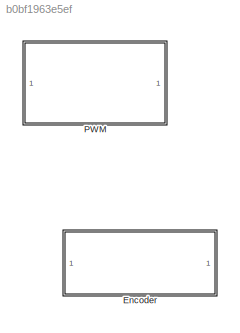
MODEL slx_b0bf1963e5ef
KIND library
CONFIG AbsTol = auto
CONFIG FixedStep = auto
CONFIG MaxStep = auto
CONFIG MinStep = auto
CONFIG RelTol = 1e-3
CONFIG SampleTimeConstraint = Unconstrained
CONFIG Solver = ode45
CONFIG SolverMode = Auto
CONFIG SolverName = ode45
CONFIG StartTime = 0.0
CONFIG StopTime = 10.0
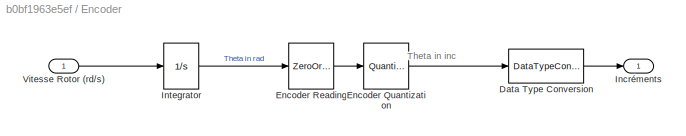
BLOCK [SubSystem] Encoder
  Ports = [1, 1]
  RequestExecContextInheritance = off
BLOCK [DataTypeConversion] Encoder/Data Type Conversion
  RndMeth = Floor
  SaturateOnIntegerOverflow = off
BLOCK [Quantizer] Encoder/Encoder Quantization
  QuantizationInterval = (2*pi)/EncRes
BLOCK [ZeroOrderHold] Encoder/Encoder Reading
  SampleTime = TsEnc
BLOCK [Outport] Encoder/Incréments
  IconDisplay = Port number
BLOCK [Integrator] Encoder/Integrator
  Ports = [1, 1]
BLOCK [Inport] Encoder/Vitesse Rotor (rd//s)
  IconDisplay = Port number
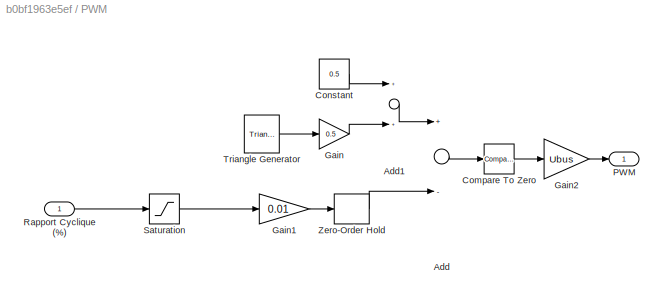
BLOCK [SubSystem] PWM
  Ports = [1, 1]
  RequestExecContextInheritance = off
BLOCK [Sum] PWM/Add
  InputSameDT = off
  Inputs = +-
  OutDataTypeStr = Inherit: Inherit via internal rule
  Ports = [2, 1]
  SaturateOnIntegerOverflow = off
BLOCK [Sum] PWM/Add1
  InputSameDT = off
  OutDataTypeStr = Inherit: Inherit via internal rule
  Ports = [2, 1]
  SaturateOnIntegerOverflow = off
BLOCK [Reference] PWM/Compare To Zero  REF=simulink/Logic and Bit
Operations/Compare
To Zero
  OutDataTypeStr = boolean
  Ports = [1, 1]
  SourceBlock = simulink/Logic and Bit\nOperations/Compare\nTo Zero
  SourceType = Compare To Zero
  ZeroCross = on
  relop = <=
BLOCK [Constant] PWM/Constant
  Value = 0.5
BLOCK [Gain] PWM/Gain
  Gain = 0.5
  OutDataTypeStr = Inherit: Inherit via internal rule
  ParamDataTypeStr = Inherit: Inherit via internal rule
  SaturateOnIntegerOverflow = off
BLOCK [Gain] PWM/Gain1
  Gain = 0.01
  OutDataTypeStr = Inherit: Inherit via internal rule
  ParamDataTypeStr = Inherit: Inherit via internal rule
  SaturateOnIntegerOverflow = off
BLOCK [Gain] PWM/Gain2
  Gain = Ubus
  OutDataTypeStr = double
  ParamDataTypeStr = Inherit: Inherit via internal rule
  SaturateOnIntegerOverflow = off
BLOCK [Outport] PWM/PWM
  IconDisplay = Port number
BLOCK [Inport] PWM/Rapport Cyclique (%)
  IconDisplay = Port number
BLOCK [Saturate] PWM/Saturation
  InputPortMap = u0
  LowerLimit = -100
  Ports = [1, 1]
  UpperLimit = 100
BLOCK [Reference] PWM/Triangle Generator  REF=powerlib_meascontrol/Pulse & Signal
Generators/Triangle
Generator
  Freq = FreqTriangle
  Phase = 90
  Ports = [0, 1]
  SourceBlock = powerlib_meascontrol/Pulse & Signal\nGenerators/Triangle\nGenerator
  SourceType = Triangle Generator
  Ts = 0
BLOCK [ZeroOrderHold] PWM/Zero-Order Hold
ANNOTATION Encoder: Theta in inc
LINE Encoder/Data Type Conversion:1 -> Encoder/Incréments:1
LINE Encoder/Encoder Quantization:1 -> Encoder/Data Type Conversion:1
LINE Encoder/Encoder Reading:1 -> Encoder/Encoder Quantization:1
LINE Encoder/Integrator:1 -> Encoder/Encoder Reading:1
LINE Encoder/Vitesse Rotor (rd//s):1 -> Encoder/Integrator:1
LINE PWM/Add1:1 -> PWM/Add:1
LINE PWM/Add:1 -> PWM/Compare To Zero:1
LINE PWM/Compare To Zero:1 -> PWM/Gain2:1
LINE PWM/Constant:1 -> PWM/Add1:1
LINE PWM/Gain1:1 -> PWM/Zero-Order Hold:1
LINE PWM/Gain2:1 -> PWM/PWM:1
LINE PWM/Gain:1 -> PWM/Add1:2
LINE PWM/Rapport Cyclique (%):1 -> PWM/Saturation:1
LINE PWM/Saturation:1 -> PWM/Gain1:1
LINE PWM/Triangle Generator:1 -> PWM/Gain:1
LINE PWM/Zero-Order Hold:1 -> PWM/Add:2
